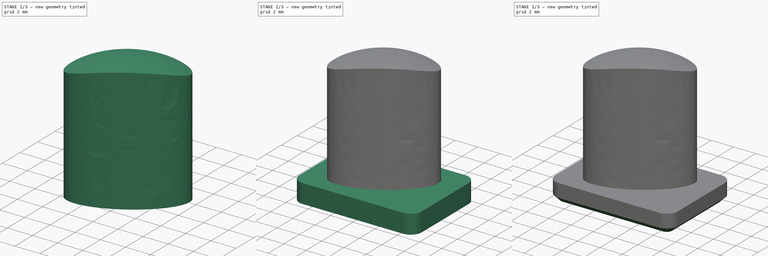
[diagram: build sequence overview — one tinted view per stage of 3, left to right]
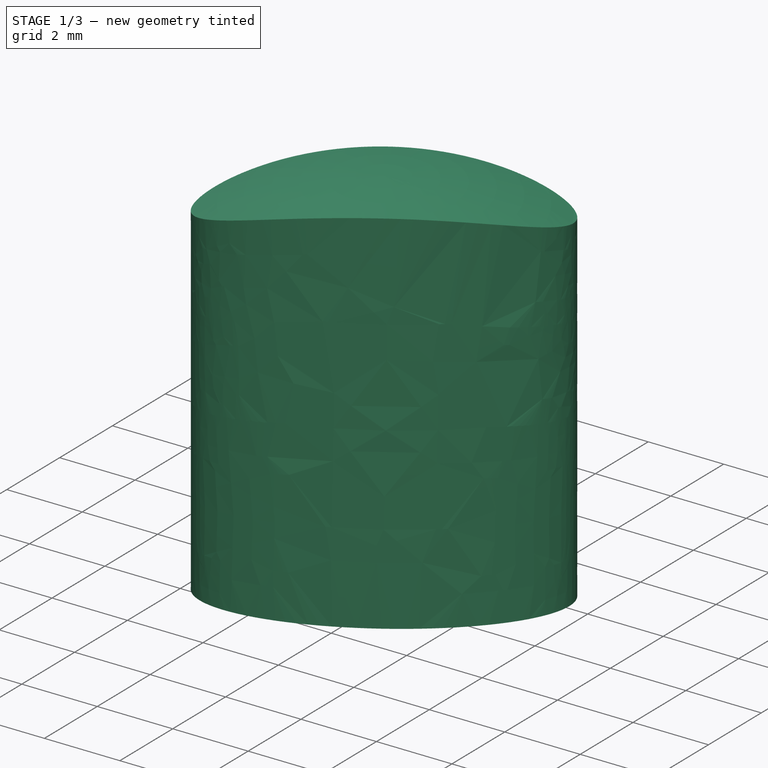
[diagram: stage 1 of 3 — iso view after this stage's code; geometry added in this stage tinted green]
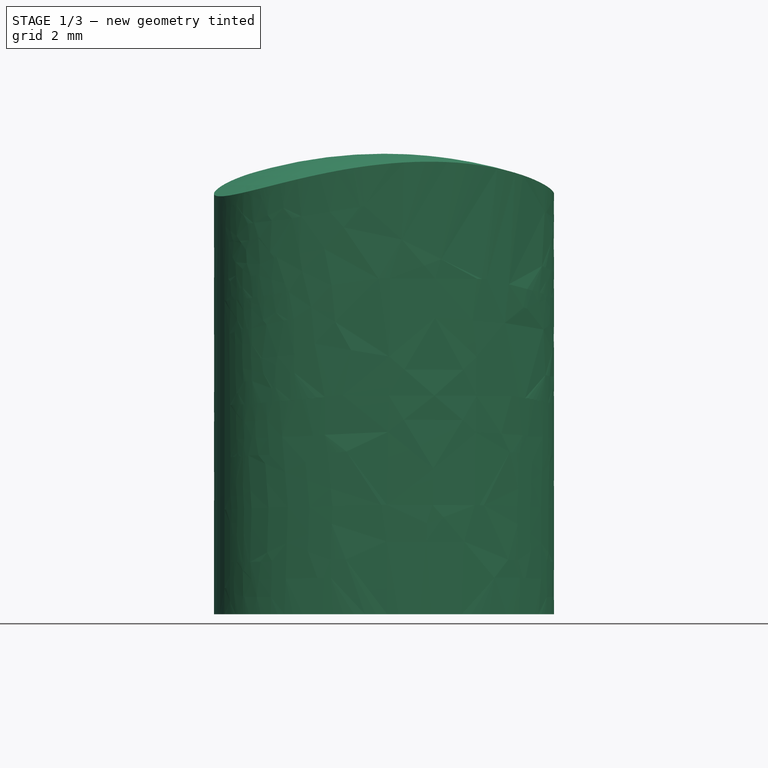
[diagram: stage 1 of 3 — front view after this stage's code; geometry added in this stage tinted green]
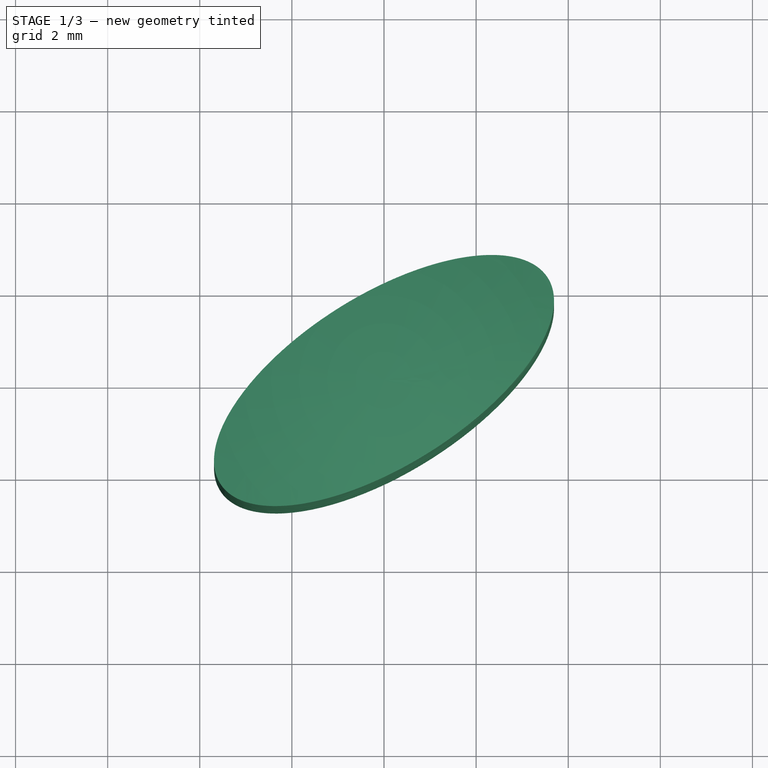
[diagram: stage 1 of 3 — top view after this stage's code; geometry added in this stage tinted green]
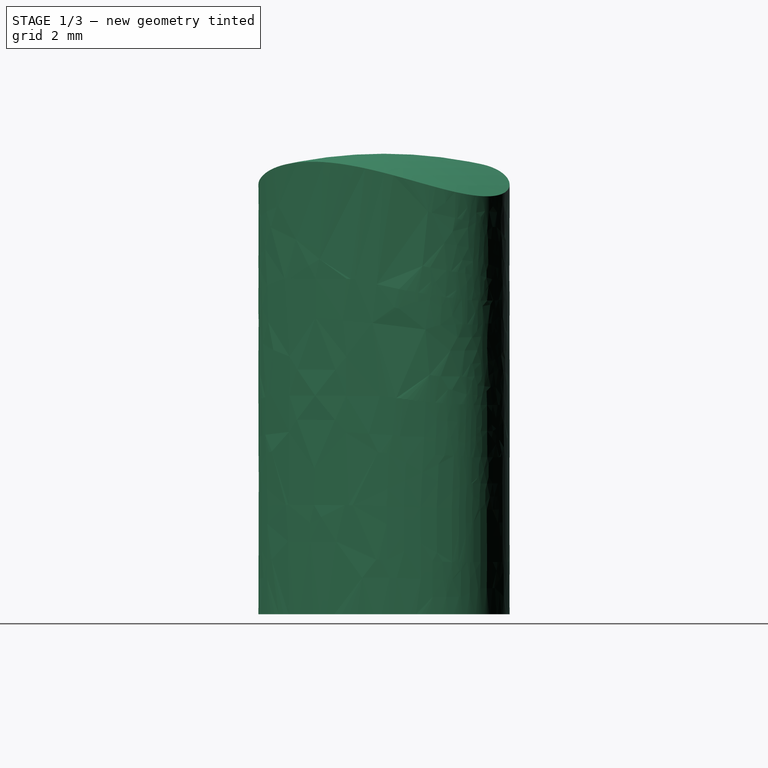
[diagram: stage 1 of 3 — right view after this stage's code; geometry added in this stage tinted green]
FCSTD DOCUMENT  (FreeCAD 0.19R24267 +99 (Git))
Label: Button Red Auto-Fire
License: All rights reserved
LicenseURL: http://en.wikipedia.org/wiki/All_rights_reserved
objects: Sketcher::SketchObject×3, PartDesign::Pocket×2, PartDesign::AdditiveSphere×1, PartDesign::Pad×1, PartDesign::Chamfer×1, PartDesign::Body×1, App::MeasureDistance×1
note: 14 computed .brp shape members not serialized (recipe doc carries the construction recipe); baked Part::Feature solids carry a one-line shape summary decoded from their .brp

FEATURE [PartDesign::AdditiveSphere] Sphere
  Angle1 = 0
  Angle2 = 90
  Angle3 = 360
  AttacherType = Attacher::AttachEngine3D
  Radius = 10
FEATURE [Sketcher::SketchObject] Sketch  label="Ovoloïde"
  FullyConstrained = true
  MapMode = 5
  Placement = pos=(0,0,0) rot=(0,1,0;3.14159rad)
  Support = -> [XY_Plane]
  sketch-geometry (9):
    g0: LineSegment StartX=-50 StartY=50 StartZ=0 EndX=50 EndY=50 EndZ=0
    g1: LineSegment StartX=50 StartY=50 StartZ=0 EndX=50 EndY=-50 EndZ=0
    g2: LineSegment StartX=50 StartY=-50 StartZ=0 EndX=-50 EndY=-50 EndZ=0
    g3: LineSegment StartX=-50 StartY=-50 StartZ=0 EndX=-50 EndY=50 EndZ=0
    g4: Ellipse CenterX=0 CenterY=0 CenterZ=0 NormalX=0 NormalY=0 NormalZ=1 MajorRadius=4.2 MinorRadius=1.85 AngleXU=-0.560251
    g5: LineSegment StartX=3.55791 StartY=-2.23187 StartZ=0 EndX=-3.55791 EndY=2.23187 EndZ=0
    g6: LineSegment StartX=0.983087 StartY=1.56718 StartZ=0 EndX=-0.983087 EndY=-1.56718 EndZ=0
    g7: GeomPoint X=3.19417 Y=-2.0037 Z=0
    g8: GeomPoint X=-3.19417 Y=2.0037 Z=0
  constraints (15):
    c: Coincident(g0,g1)
    c: Coincident(g1,g2)
    c: Coincident(g2,g3)
    c: Coincident(g3,g0)
    c: Horizontal(g2)
    c: Vertical(g3)
    c: InternalAlignment(g5-g8 -> g4) x4
    c: Coincident(g4,g-1)
    c: Distance(g6) = 3.7
    c: Distance(g5) = 8.4
    c: Symmetric(g0,g0,g-2)
    c: Symmetric(g0,g1,g-1)
    c: Distance(g0) = 100
    c: Distance(g1) = 100
    c: Angle(g-1,g5) = -0.560251
FEATURE [PartDesign::Pocket] Pocket  label="Body"
  BaseFeature = -> Sphere
  Length = 5
  Length2 = 100
  Profile = -> Sketch
  Type = 1
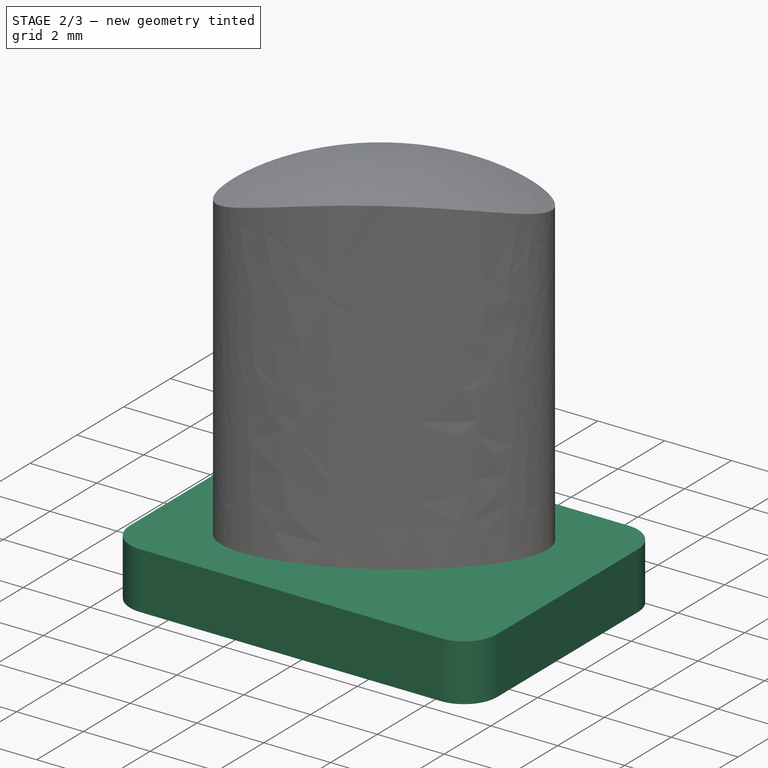
[diagram: stage 2 of 3 — iso view after this stage's code; geometry added in this stage tinted green]
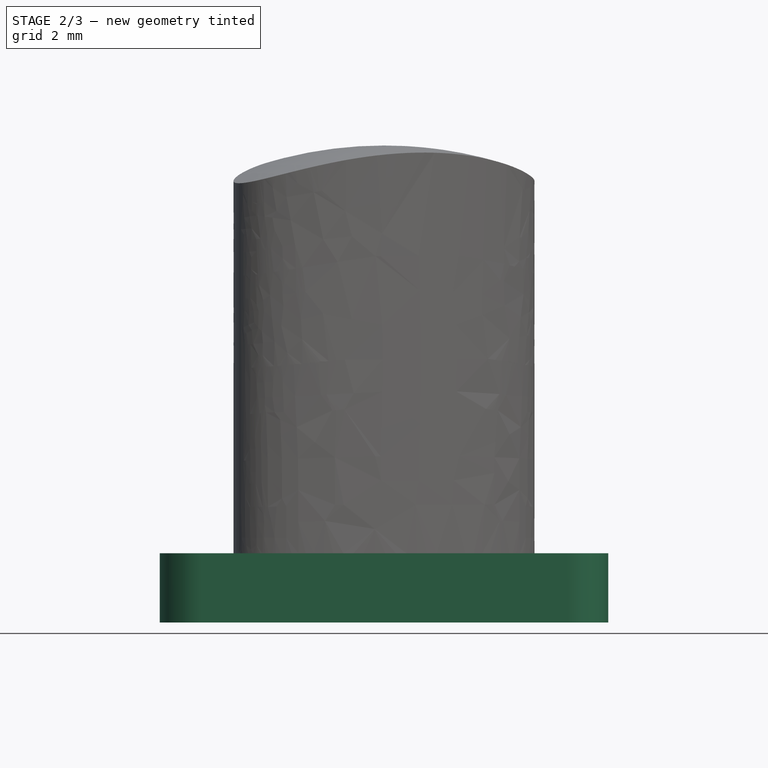
[diagram: stage 2 of 3 — front view after this stage's code; geometry added in this stage tinted green]
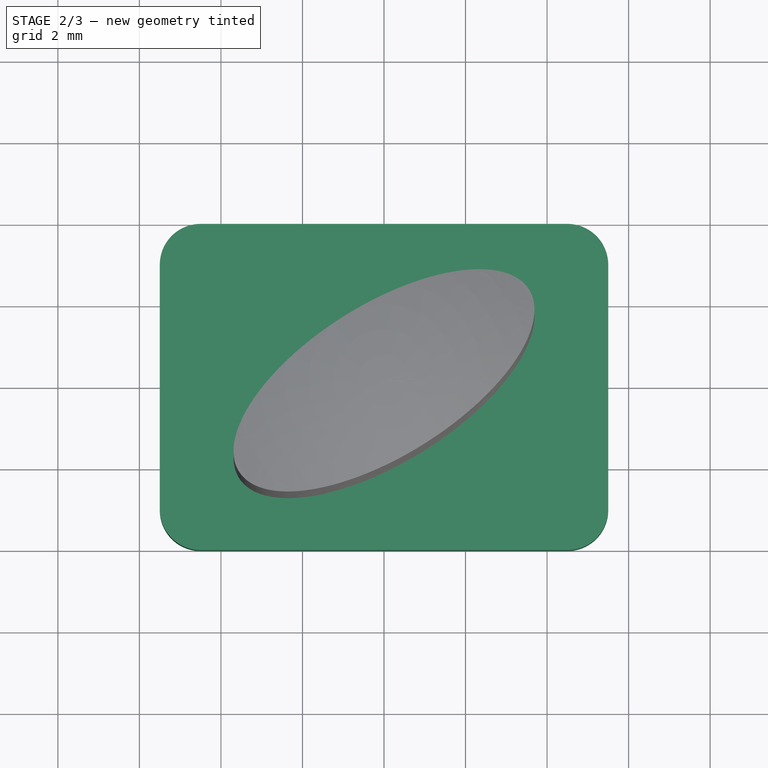
[diagram: stage 2 of 3 — top view after this stage's code; geometry added in this stage tinted green]
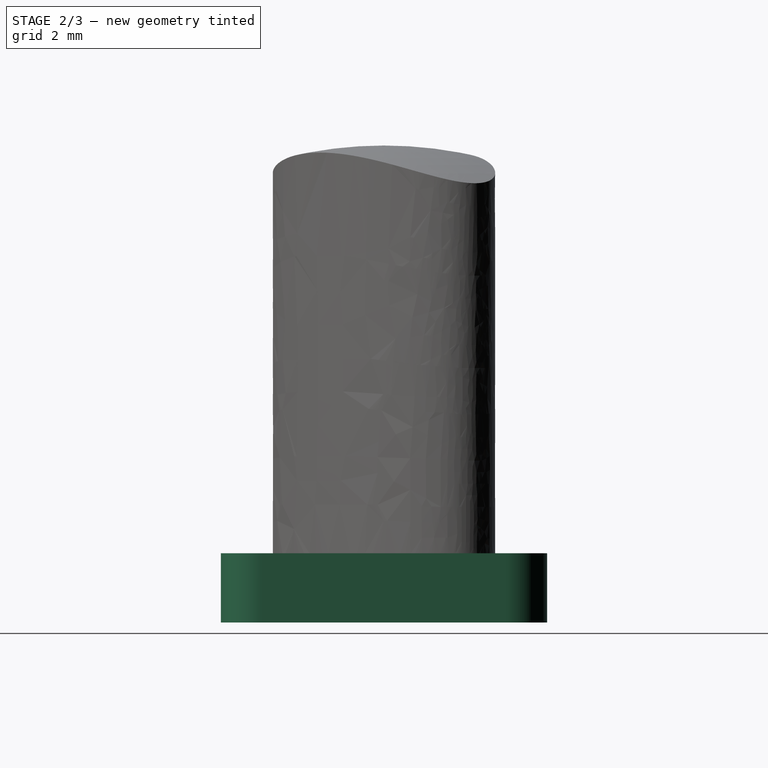
[diagram: stage 2 of 3 — right view after this stage's code; geometry added in this stage tinted green]
FEATURE [Sketcher::SketchObject] Sketch001  label="RoundedRectangle"
  FullyConstrained = true
  MapMode = 5
  Placement = pos=(0,0,0) rot=(1,0,0;3.14159rad)
  Support = -> [Pocket]
  sketch-geometry (8):
    g0: LineSegment StartX=4.5 StartY=-4 StartZ=0 EndX=-4.5 EndY=-4 EndZ=0
    g1: LineSegment StartX=-5.5 StartY=-3 StartZ=0 EndX=-5.5 EndY=3 EndZ=0
    g2: LineSegment StartX=-4.5 StartY=4 StartZ=0 EndX=4.5 EndY=4 EndZ=0
    g3: LineSegment StartX=5.5 StartY=3 StartZ=0 EndX=5.5 EndY=-3 EndZ=0
    g4: ArcOfCircle CenterX=4.5 CenterY=-3 CenterZ=0 NormalX=0 NormalY=0 NormalZ=1 AngleXU=0 Radius=1 StartAngle=4.71239 EndAngle=6.28319
    g5: ArcOfCircle CenterX=-4.5 CenterY=-3 CenterZ=0 NormalX=0 NormalY=0 NormalZ=1 AngleXU=0 Radius=1 StartAngle=3.14159 EndAngle=4.71239
    g6: ArcOfCircle CenterX=-4.5 CenterY=3 CenterZ=0 NormalX=0 NormalY=0 NormalZ=1 AngleXU=0 Radius=1 StartAngle=1.5708 EndAngle=3.14159
    g7: ArcOfCircle CenterX=4.5 CenterY=3 CenterZ=0 NormalX=0 NormalY=0 NormalZ=1 AngleXU=0 Radius=1 StartAngle=0 EndAngle=1.5708
  constraints (17):
    c: Tangent(g0,g4) = 1.5708
    c: Tangent(g3,g4) = 1.5708
    c: Tangent(g0,g5) = 1.5708
    c: Tangent(g1,g5) = 1.5708
    c: Tangent(g1,g6) = 1.5708
    c: Tangent(g2,g6) = 1.5708
    c: Tangent(g2,g7) = 1.5708
    c: Tangent(g3,g7) = 1.5708
    c: Symmetric(g4,g6,g-1)
    c: Distance(g3,g1) = 11
    c: Distance(g0,g2) = 8
    c: Distance(g0,g5) = 1
    c: Horizontal(g2)
    c: Symmetric(g2,g0,g-1)
    c: Symmetric(g3,g1,g-2)
    c: Horizontal(g0)
    c: Vertical(g1)
FEATURE [PartDesign::Pad] Pad  label="Custody"
  BaseFeature = -> Pocket
  Direction = (1,1,1)
  Length = 1.7
  Length2 = 100
  Profile = -> Sketch001
  Type = 0
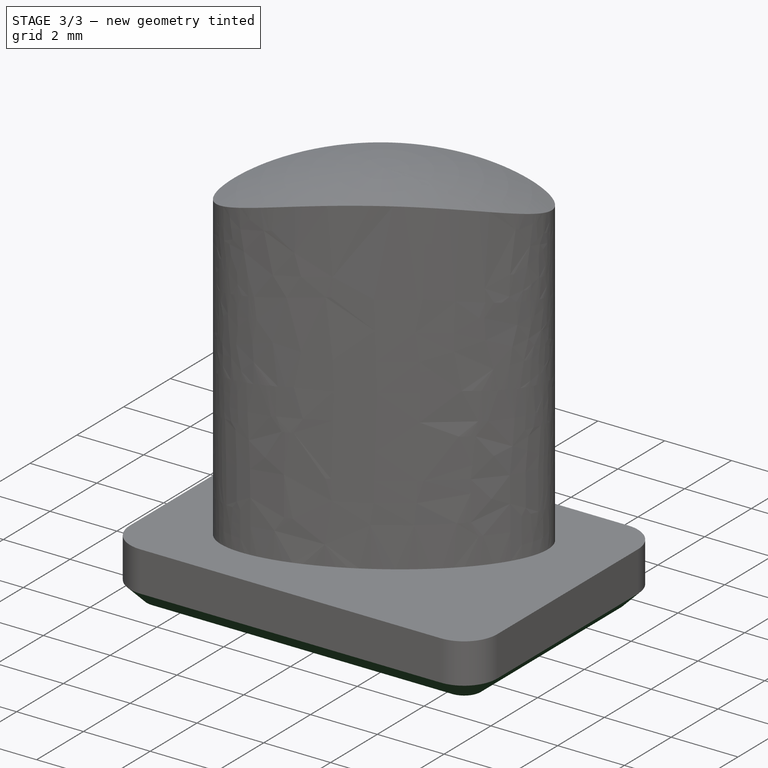
[diagram: stage 3 of 3 — iso view after this stage's code; geometry added in this stage tinted green]
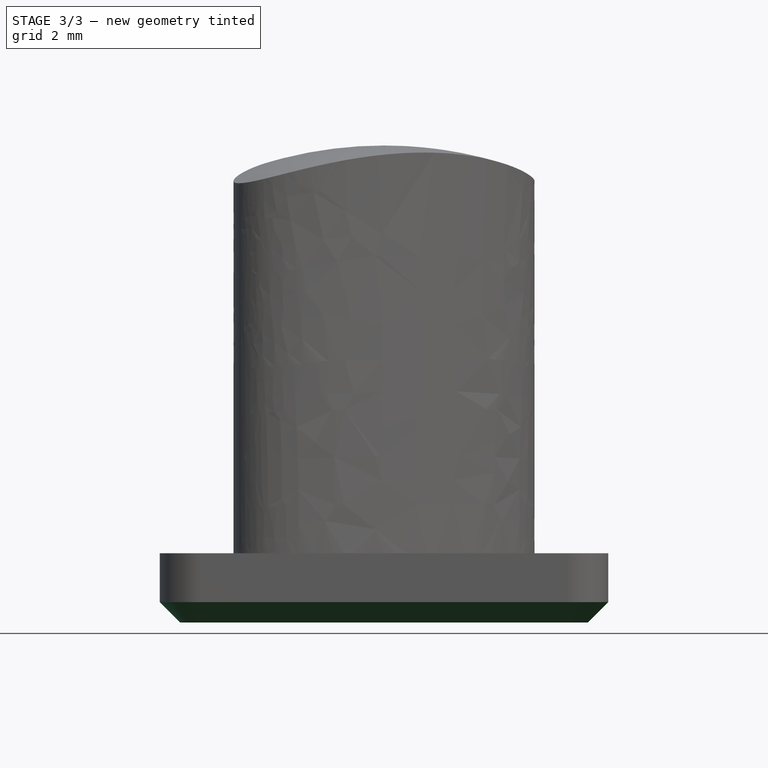
[diagram: stage 3 of 3 — front view after this stage's code; geometry added in this stage tinted green]
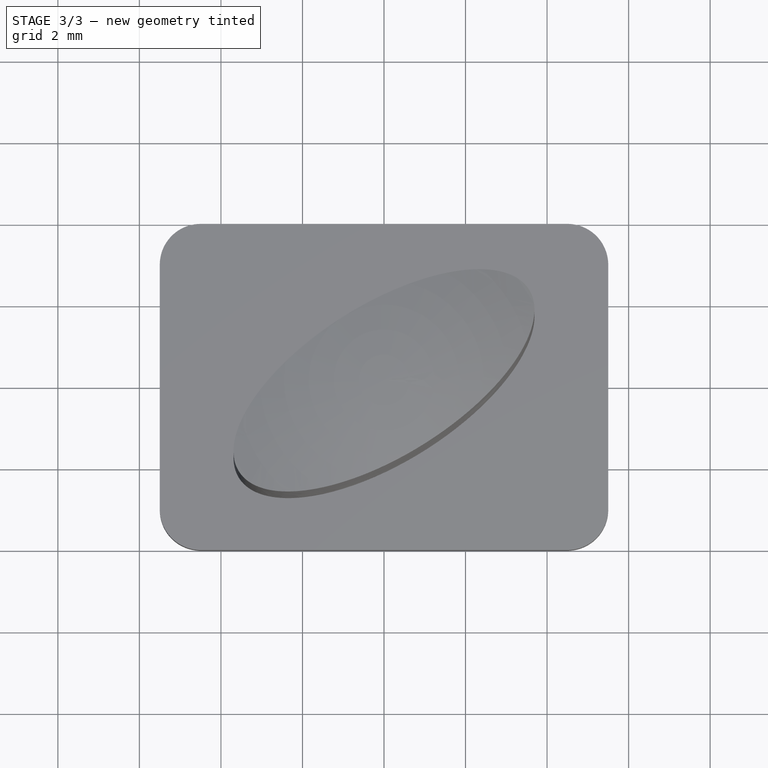
[diagram: stage 3 of 3 — top view after this stage's code; geometry added in this stage tinted green]
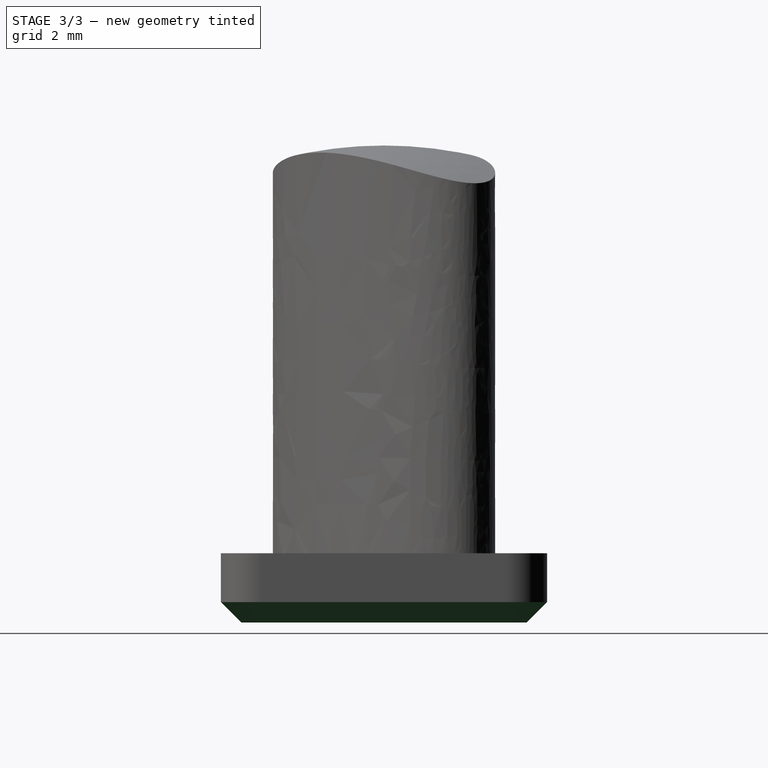
[diagram: stage 3 of 3 — right view after this stage's code; geometry added in this stage tinted green]
FEATURE [Sketcher::SketchObject] Sketch002  label="Square"
  FullyConstrained = true
  MapMode = 5
  Placement = pos=(0,0,-1.7) rot=(1,0,0;3.14159rad)
  Support = -> [Pad]
  sketch-geometry (4):
    g0: LineSegment StartX=-0.347296 StartY=1.51637 StartZ=0 EndX=1.51637 EndY=0.347296 EndZ=0
    g1: LineSegment StartX=1.51637 StartY=0.347296 StartZ=0 EndX=0.347296 EndY=-1.51637 EndZ=0
    g2: LineSegment StartX=0.347296 StartY=-1.51637 StartZ=0 EndX=-1.51637 EndY=-0.347296 EndZ=0
    g3: LineSegment StartX=-1.51637 StartY=-0.347296 StartZ=0 EndX=-0.347296 EndY=1.51637 EndZ=0
  constraints (11):
    c: Coincident(g0,g1)
    c: Coincident(g1,g2)
    c: Coincident(g2,g3)
    c: Coincident(g3,g0)
    c: Equal(g0,g1)
    c: Equal(g1,g2)
    c: Equal(g2,g3)
    c: Perpendicular(g1,g0)
    c: Symmetric(g0,g2,g-1)
    c: Distance(g0,g0) = 2.2
    c: Angle(g-1,g0) = -0.560251
FEATURE [PartDesign::Pocket] Pocket001  label="SwitchHole"
  BaseFeature = -> Pad
  Length = 5
  Length2 = 100
  Profile = -> Sketch002
  Type = 0
FEATURE [PartDesign::Chamfer] Chamfer
  Angle = 45
  Base = -> Pocket001 [Face5]
  BaseFeature = -> Pocket001
  ChamferType = 0
  FlipDirection = false
  Size = 0.5
  Size2 = 1
  SupportTransform = false
FEATURE [PartDesign::Body] Body  label="Button Red"
  Group = -> [Sphere,Sketch,Pocket,Sketch001,Pad,Sketch002,Pocket001,Chamfer]
  Origin = -> Origin
  Tip = -> Chamfer
FEATURE [App::MeasureDistance] Distance  label="Distance: 11,70 mm"
  Distance = 11.7
  P1 = (0,0,-1.7)
  P2 = (6e-16,0,10)
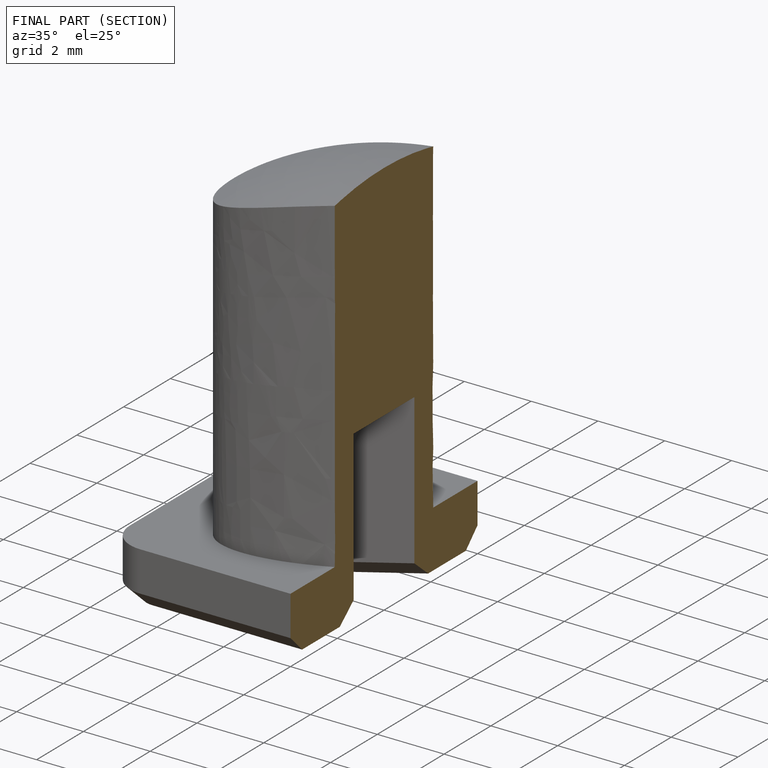
[diagram: finished part — half-section view (interior)]
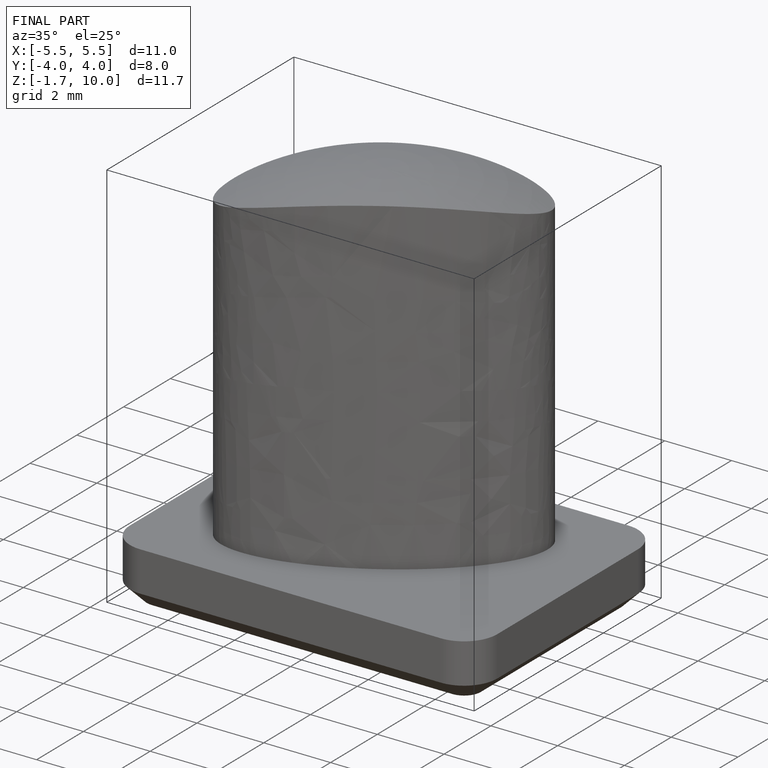
[diagram: finished part — iso view with bounding-box wireframe]
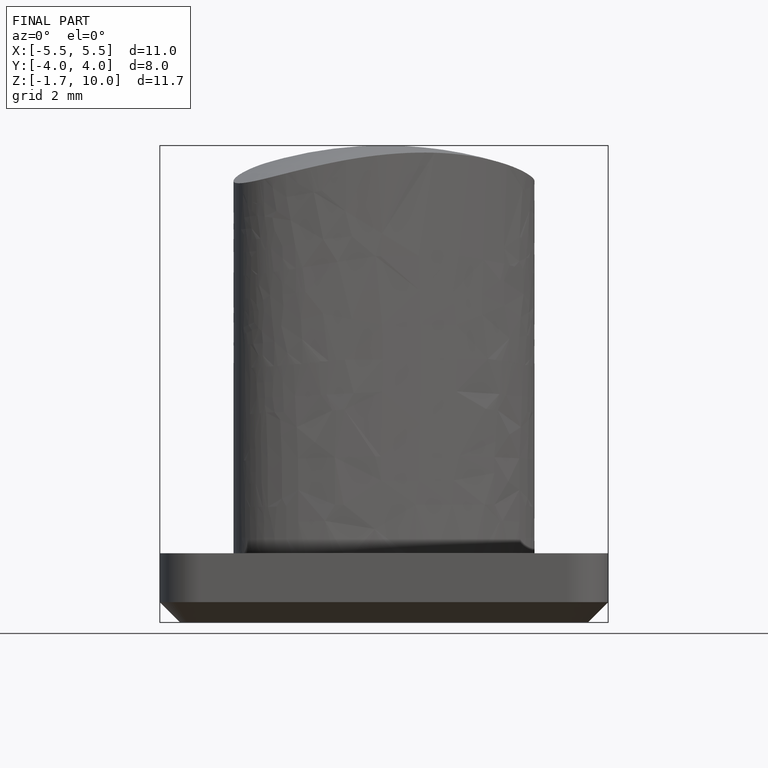
[diagram: finished part — front view with bounding-box wireframe]
